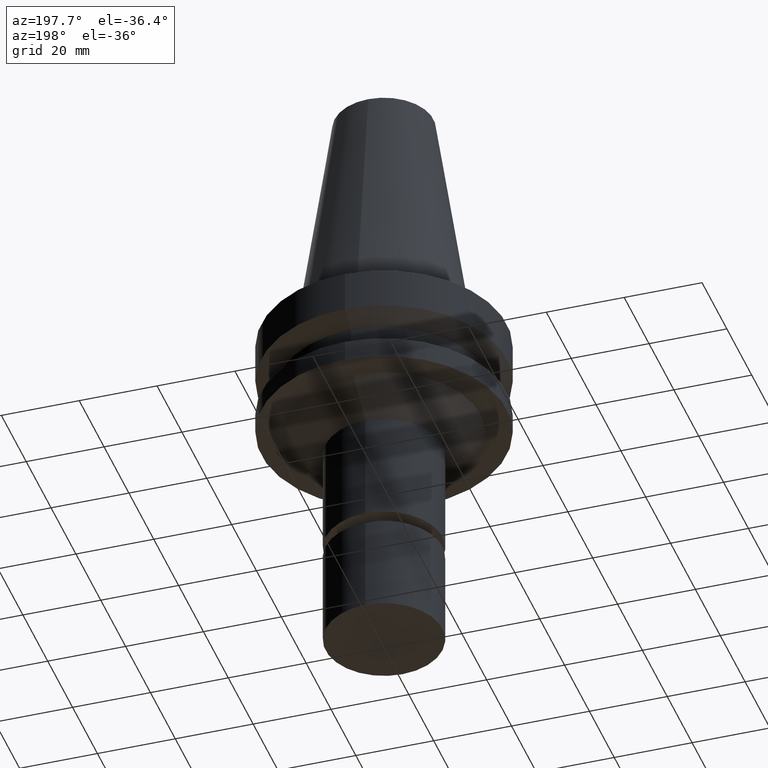
[diagram: clean part render]
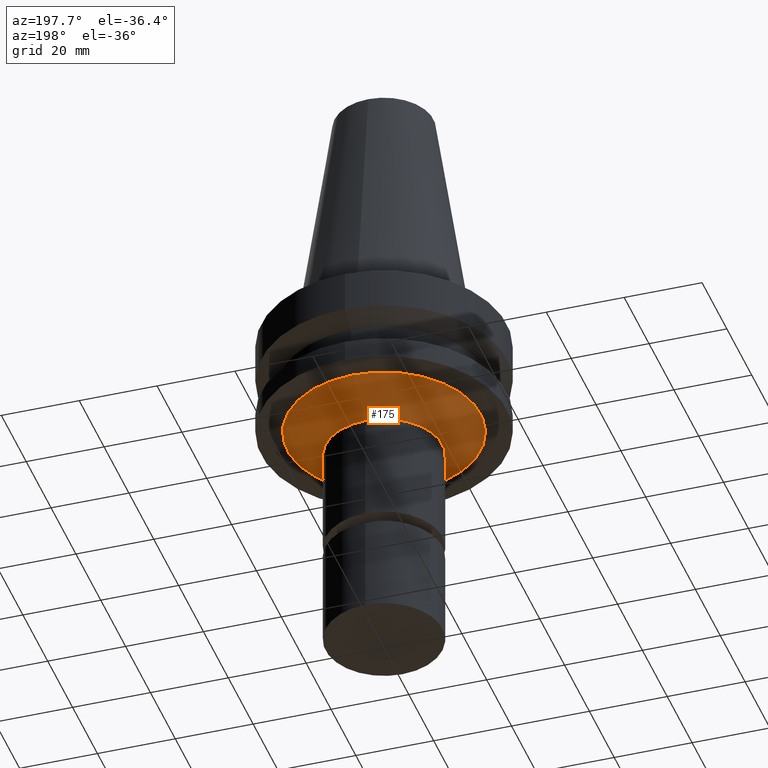
[diagram: same view with one face highlighted and labeled with its STEP entity id]
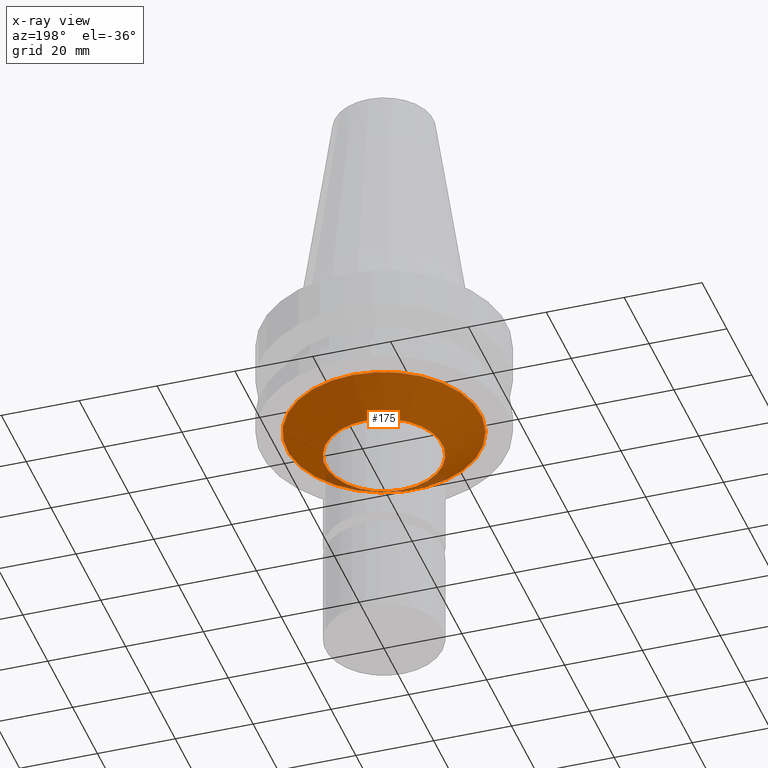
[diagram: x-ray of the same camera — body ghosted, the highlighted face saturated]
A machine part, auxiliary view. The second image highlights one B-rep face of the part: STEP entity #175.
The next image is the same camera in x-ray: the body ghosted, the highlighted face saturated — about 4% of this face is hidden behind the body in this view.
In plain terms, the highlighted conical surface has half-angle 54.789 deg.
Its self-contained STEP definition (entity closure, byte-faithful):
#80=EDGE_CURVE('Unnamed[1]',#209,#209,#210,.T.);
#109=EDGE_CURVE('Unnamed[1]',#253,#253,#254,.T.);
#175=ADVANCED_FACE('Unnamed[1]',(#353,#354),#355,.T.);
#209=VERTEX_POINT('',#387);
#210=CIRCLE('',#388,15.0000000000004);
#253=VERTEX_POINT('',#442);
#254=CIRCLE('',#443,24.8688249295048);
#353=FACE_BOUND('',#566,.T.);
#354=FACE_BOUND('',#567,.T.);
#355=CONICAL_SURFACE('',#568,19.9344124647526,0.956240827688239);
#387=CARTESIAN_POINT('',(2.07973442388956E-015,15.0000000000004,-33.9646406676203));
#388=AXIS2_PLACEMENT_3D('',#589,#590,#591);
#442=CARTESIAN_POINT('',(1.65327317884891E-015,24.8688249295049,-26.9999999999998));
#443=AXIS2_PLACEMENT_3D('',#635,#636,#637);
#566=EDGE_LOOP('',(#747));
#567=EDGE_LOOP('',(#748));
#568=AXIS2_PLACEMENT_3D('',#749,#750,#751);
#589=CARTESIAN_POINT('',(2.07973442388956E-015,7.24254740834941E-014,-33.9646406676203));
#590=DIRECTION('',(6.12323399573677E-017,-4.7256395665028E-017,-1.0));
#591=DIRECTION('',(-1.93353304624816E-033,1.0,-4.7256395665028E-017));
#635=CARTESIAN_POINT('',(1.65327317884891E-015,7.2754597898548E-014,-26.9999999999998));
#636=DIRECTION('',(6.12323399573677E-017,-4.7256395665028E-017,-1.0));
#637=DIRECTION('',(-1.93353304624815E-033,1.0,-4.7256395665028E-017));
#747=ORIENTED_EDGE('',*,*,#80,.F.);
#748=ORIENTED_EDGE('',*,*,#109,.T.);
#749=CARTESIAN_POINT('',(1.86650380136924E-015,7.2590035991021E-014,-30.4823203338101));
#750=DIRECTION('',(-6.12323399573677E-017,4.72563956650279E-017,1.0));
#751=DIRECTION('',(-1.93353304624816E-033,1.0,-4.72563956650279E-017));